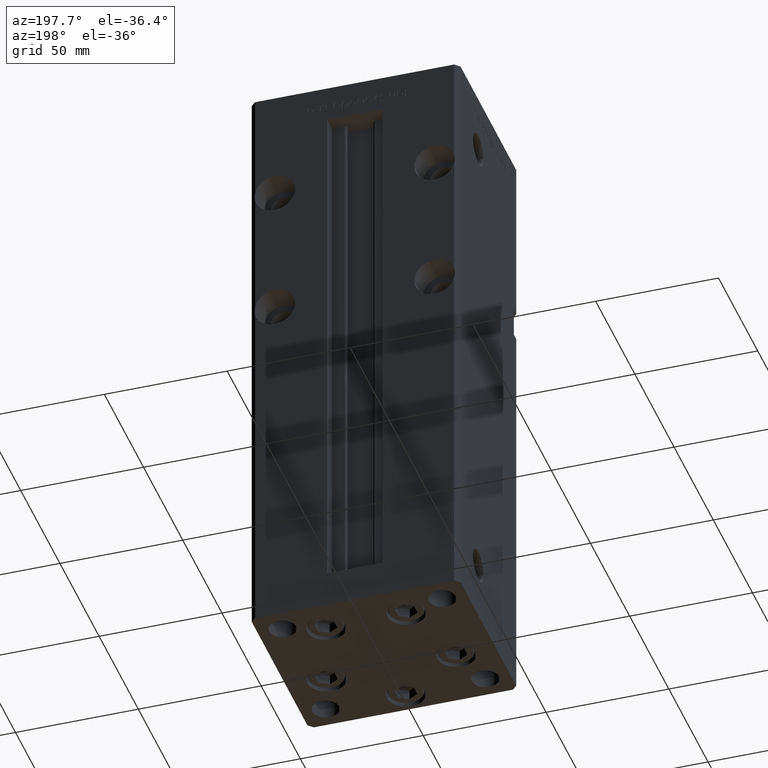
[diagram: clean part render]
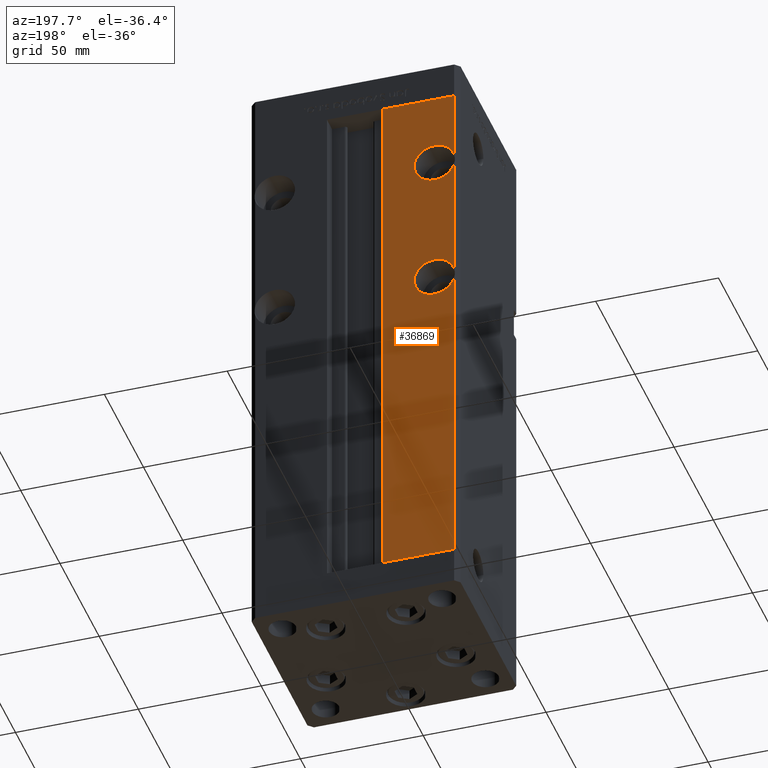
[diagram: same view with one face highlighted and labeled with its STEP entity id]
A machine part, auxiliary view. The second image highlights one B-rep face of the part: STEP entity #36869.
In plain terms, the highlighted planar face has unit normal (0, -1, 0).
Its self-contained STEP definition (entity closure, byte-faithful):
#894 = EDGE_CURVE ( 'NONE', #14595, #30402, #16238, .T. ) ;
#2120 = DIRECTION ( 'NONE',  ( 0.000000000000000000, -1.000000000000000000, 0.000000000000000000 ) ) ;
#2319 = CARTESIAN_POINT ( 'NONE',  ( -40.50000000000000711, 37.50000000000000000, 218.5000000000000000 ) ) ;
#2656 = DIRECTION ( 'NONE',  ( 0.000000000000000000, 0.000000000000000000, 1.000000000000000000 ) ) ;
#2922 = FACE_OUTER_BOUND ( 'NONE', #37255, .T. ) ;
#5127 = VERTEX_POINT ( 'NONE', #31190 ) ;
#5430 = DIRECTION ( 'NONE',  ( 0.000000000000000000, 0.000000000000000000, -1.000000000000000000 ) ) ;
#6229 = EDGE_CURVE ( 'NONE', #40779, #30402, #41894, .T. ) ;
#6604 = ORIENTED_EDGE ( 'NONE', *, *, #33476, .F. ) ;
#6622 = DIRECTION ( 'NONE',  ( -0.000000000000000000, -0.000000000000000000, -1.000000000000000000 ) ) ;
#6940 = VECTOR ( 'NONE', #17433, 1000.000000000000000 ) ;
#7147 = DIRECTION ( 'NONE',  ( 0.000000000000000000, 0.000000000000000000, -1.000000000000000000 ) ) ;
#7765 = VECTOR ( 'NONE', #18513, 1000.000000000000000 ) ;
#8077 = VERTEX_POINT ( 'NONE', #51869 ) ;
#9036 = AXIS2_PLACEMENT_3D ( 'NONE', #10633, #43962, #7147 ) ;
#10443 = DIRECTION ( 'NONE',  ( 0.000000000000000000, -0.000000000000000000, -1.000000000000000000 ) ) ;
#10633 = CARTESIAN_POINT ( 'NONE',  ( -32.50000000000000000, 37.50000000000000000, 188.0000000000000000 ) ) ;
#10788 = CARTESIAN_POINT ( 'NONE',  ( -40.50000000000000711, 37.50000000000000000, 218.5000000000000000 ) ) ;
#11325 = LINE ( 'NONE', #10788, #21066 ) ;
#11656 = ORIENTED_EDGE ( 'NONE', *, *, #51407, .F. ) ;
#11966 = CARTESIAN_POINT ( 'NONE',  ( -40.50000000000000711, 37.50000000000000000, 185.9844355629253698 ) ) ;
#13374 = AXIS2_PLACEMENT_3D ( 'NONE', #37236, #37769, #36964 ) ;
#13427 = CARTESIAN_POINT ( 'NONE',  ( -40.50000000000000711, 37.50000000000000000, 190.0155644370746302 ) ) ;
#14098 = CIRCLE ( 'NONE', #44126, 8.250000000000007105 ) ;
#14595 = VERTEX_POINT ( 'NONE', #30336 ) ;
#14668 = VERTEX_POINT ( 'NONE', #38131 ) ;
#15314 = ORIENTED_EDGE ( 'NONE', *, *, #21423, .F. ) ;
#15344 = VECTOR ( 'NONE', #21069, 1000.000000000000000 ) ;
#15817 = AXIS2_PLACEMENT_3D ( 'NONE', #36483, #23074, #2656 ) ;
#16238 = LINE ( 'NONE', #36919, #15344 ) ;
#17433 = DIRECTION ( 'NONE',  ( 1.000000000000000000, 0.000000000000000000, 0.000000000000000000 ) ) ;
#17623 = VECTOR ( 'NONE', #31970, 1000.000000000000000 ) ;
#17975 = ORIENTED_EDGE ( 'NONE', *, *, #20115, .F. ) ;
#18053 = DIRECTION ( 'NONE',  ( 0.000000000000000000, 1.000000000000000000, 0.000000000000000000 ) ) ;
#18314 = CARTESIAN_POINT ( 'NONE',  ( -32.50000000000000000, 37.50000000000000000, 188.0000000000000000 ) ) ;
#18513 = DIRECTION ( 'NONE',  ( -0.000000000000000000, -0.000000000000000000, -1.000000000000000000 ) ) ;
#18537 = PLANE ( 'NONE',  #40935 ) ;
#19059 = CARTESIAN_POINT ( 'NONE',  ( -40.50000000000000711, 37.50000000000000000, 130.9844355629253698 ) ) ;
#20115 = EDGE_CURVE ( 'NONE', #41394, #26096, #41542, .T. ) ;
#21066 = VECTOR ( 'NONE', #31224, 1000.000000000000000 ) ;
#21069 = DIRECTION ( 'NONE',  ( -0.000000000000000000, -0.000000000000000000, 1.000000000000000000 ) ) ;
#21085 = CIRCLE ( 'NONE', #13374, 8.250000000000007105 ) ;
#21369 = EDGE_CURVE ( 'NONE', #41526, #45753, #14098, .T. ) ;
#21423 = EDGE_CURVE ( 'NONE', #46436, #35732, #34680, .T. ) ;
#21848 = EDGE_CURVE ( 'NONE', #35732, #14668, #24070, .T. ) ;
#22287 = DIRECTION ( 'NONE',  ( 0.000000000000000000, 1.000000000000000000, -0.000000000000000000 ) ) ;
#22547 = CARTESIAN_POINT ( 'NONE',  ( -32.50000000000000000, 37.50000000000000000, 188.0000000000000000 ) ) ;
#22790 = LINE ( 'NONE', #38134, #7765 ) ;
#23074 = DIRECTION ( 'NONE',  ( 0.000000000000000000, 1.000000000000000000, 0.000000000000000000 ) ) ;
#23273 = EDGE_CURVE ( 'NONE', #45753, #41394, #40793, .T. ) ;
#24070 = LINE ( 'NONE', #2319, #37304 ) ;
#24138 = ORIENTED_EDGE ( 'NONE', *, *, #21848, .F. ) ;
#24371 = EDGE_CURVE ( 'NONE', #8077, #46436, #21085, .T. ) ;
#25866 = DIRECTION ( 'NONE',  ( 0.000000000000000000, 0.000000000000000000, 1.000000000000000000 ) ) ;
#26096 = VERTEX_POINT ( 'NONE', #11966 ) ;
#26212 = CARTESIAN_POINT ( 'NONE',  ( -40.50000000000000711, 37.50000000000000000, 218.5000000000000000 ) ) ;
#30150 = DIRECTION ( 'NONE',  ( 0.000000000000000000, 1.000000000000000000, -0.000000000000000000 ) ) ;
#30336 = CARTESIAN_POINT ( 'NONE',  ( -11.24999999999999822, 37.50000000000000000, 0.000000000000000000 ) ) ;
#30402 = VERTEX_POINT ( 'NONE', #39354 ) ;
#30911 = LINE ( 'NONE', #47298, #17623 ) ;
#31190 = CARTESIAN_POINT ( 'NONE',  ( -40.50000000000000711, 37.50000000000000000, 135.0155644370746302 ) ) ;
#31224 = DIRECTION ( 'NONE',  ( -0.000000000000000000, -0.000000000000000000, -1.000000000000000000 ) ) ;
#31948 = EDGE_CURVE ( 'NONE', #14595, #14668, #30911, .T. ) ;
#31970 = DIRECTION ( 'NONE',  ( -1.000000000000000000, 0.000000000000000000, 0.000000000000000000 ) ) ;
#32319 = CIRCLE ( 'NONE', #44341, 8.250000000000007105 ) ;
#32648 = ORIENTED_EDGE ( 'NONE', *, *, #23273, .F. ) ;
#33352 = CARTESIAN_POINT ( 'NONE',  ( -32.50000000000000000, 37.50000000000000000, 196.2500000000000000 ) ) ;
#33476 = EDGE_CURVE ( 'NONE', #26096, #5127, #11325, .T. ) ;
#33915 = CARTESIAN_POINT ( 'NONE',  ( -32.50000000000000000, 37.50000000000000000, 133.0000000000000000 ) ) ;
#34680 = CIRCLE ( 'NONE', #15817, 8.250000000000007105 ) ;
#35732 = VERTEX_POINT ( 'NONE', #19059 ) ;
#36483 = CARTESIAN_POINT ( 'NONE',  ( -32.50000000000000000, 37.50000000000000000, 133.0000000000000000 ) ) ;
#36869 = ADVANCED_FACE ( 'NONE', ( #2922 ), #18537, .F. ) ;
#36919 = CARTESIAN_POINT ( 'NONE',  ( -11.24999999999999822, 37.50000000000000000, 0.000000000000000000 ) ) ;
#36964 = DIRECTION ( 'NONE',  ( 0.000000000000000000, 0.000000000000000000, 1.000000000000000000 ) ) ;
#37236 = CARTESIAN_POINT ( 'NONE',  ( -32.50000000000000000, 37.50000000000000000, 133.0000000000000000 ) ) ;
#37255 = EDGE_LOOP ( 'NONE', ( #6604, #17975, #32648, #44117, #11656, #51722, #50478, #42886, #24138, #15314, #50301, #50752 ) ) ;
#37304 = VECTOR ( 'NONE', #6622, 1000.000000000000000 ) ;
#37769 = DIRECTION ( 'NONE',  ( 0.000000000000000000, 1.000000000000000000, 0.000000000000000000 ) ) ;
#38131 = CARTESIAN_POINT ( 'NONE',  ( -40.50000000000000711, 37.50000000000000000, 0.000000000000000000 ) ) ;
#38134 = CARTESIAN_POINT ( 'NONE',  ( -40.50000000000000711, 37.50000000000000000, 218.5000000000000000 ) ) ;
#38538 = CARTESIAN_POINT ( 'NONE',  ( -32.50000000000000000, 37.50000000000000000, 179.7500000000000000 ) ) ;
#38949 = CARTESIAN_POINT ( 'NONE',  ( -11.24999999999999822, 37.50000000000000000, 218.5000000000000000 ) ) ;
#39354 = CARTESIAN_POINT ( 'NONE',  ( -11.24999999999999822, 37.50000000000000000, 218.5000000000000000 ) ) ;
#40141 = CARTESIAN_POINT ( 'NONE',  ( -32.50000000000000000, 37.50000000000000000, 124.7500000000000000 ) ) ;
#40779 = VERTEX_POINT ( 'NONE', #26212 ) ;
#40793 = CIRCLE ( 'NONE', #9036, 8.250000000000007105 ) ;
#40935 = AXIS2_PLACEMENT_3D ( 'NONE', #38949, #2120, #10443 ) ;
#41064 = EDGE_CURVE ( 'NONE', #5127, #8077, #32319, .T. ) ;
#41394 = VERTEX_POINT ( 'NONE', #38538 ) ;
#41526 = VERTEX_POINT ( 'NONE', #13427 ) ;
#41542 = CIRCLE ( 'NONE', #50129, 8.250000000000007105 ) ;
#41894 = LINE ( 'NONE', #45907, #6940 ) ;
#42886 = ORIENTED_EDGE ( 'NONE', *, *, #31948, .T. ) ;
#43962 = DIRECTION ( 'NONE',  ( 0.000000000000000000, 1.000000000000000000, -0.000000000000000000 ) ) ;
#44117 = ORIENTED_EDGE ( 'NONE', *, *, #21369, .F. ) ;
#44126 = AXIS2_PLACEMENT_3D ( 'NONE', #22547, #22287, #50776 ) ;
#44341 = AXIS2_PLACEMENT_3D ( 'NONE', #33915, #18053, #25866 ) ;
#45753 = VERTEX_POINT ( 'NONE', #33352 ) ;
#45907 = CARTESIAN_POINT ( 'NONE',  ( -11.24999999999999822, 37.50000000000000000, 218.5000000000000000 ) ) ;
#46436 = VERTEX_POINT ( 'NONE', #40141 ) ;
#47298 = CARTESIAN_POINT ( 'NONE',  ( -11.24999999999999822, 37.50000000000000000, 0.000000000000000000 ) ) ;
#50129 = AXIS2_PLACEMENT_3D ( 'NONE', #18314, #30150, #5430 ) ;
#50301 = ORIENTED_EDGE ( 'NONE', *, *, #24371, .F. ) ;
#50478 = ORIENTED_EDGE ( 'NONE', *, *, #894, .F. ) ;
#50752 = ORIENTED_EDGE ( 'NONE', *, *, #41064, .F. ) ;
#50776 = DIRECTION ( 'NONE',  ( 0.000000000000000000, 0.000000000000000000, -1.000000000000000000 ) ) ;
#51407 = EDGE_CURVE ( 'NONE', #40779, #41526, #22790, .T. ) ;
#51722 = ORIENTED_EDGE ( 'NONE', *, *, #6229, .T. ) ;
#51869 = CARTESIAN_POINT ( 'NONE',  ( -32.50000000000000000, 37.50000000000000000, 141.2500000000000284 ) ) ;